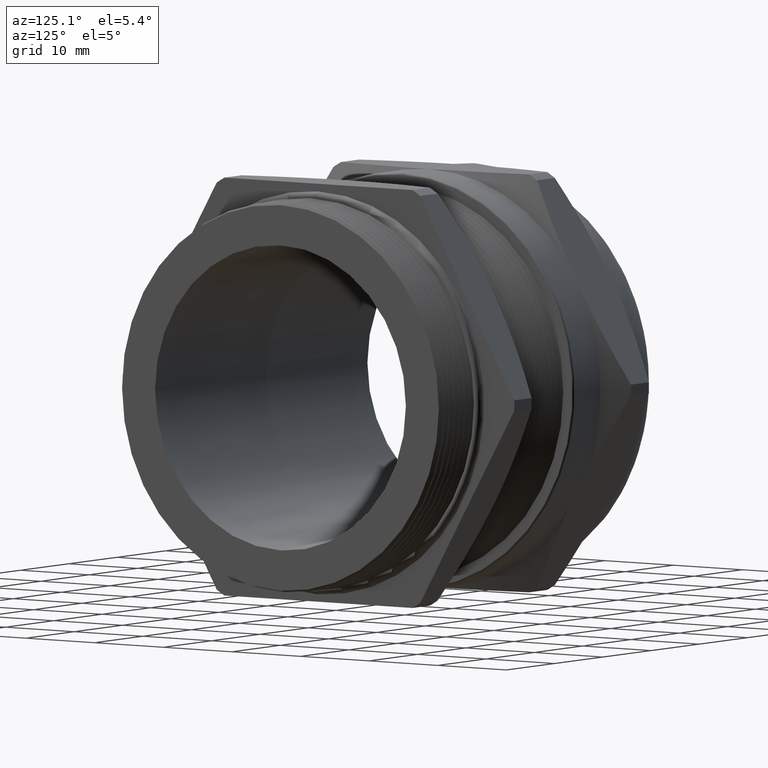
[diagram: clean part render]
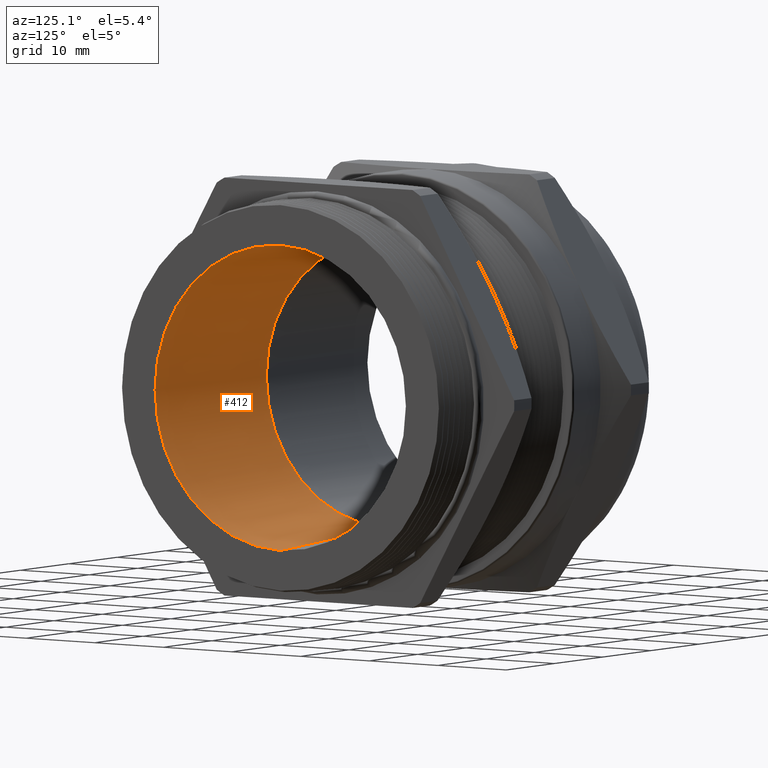
[diagram: same view with one face highlighted and labeled with its STEP entity id]
A machine part, auxiliary view. The second image highlights one B-rep face of the part: STEP entity #412.
In plain terms, the highlighted conical surface has half-angle 3 deg.
Its self-contained STEP definition (entity closure, byte-faithful):
#101 = EDGE_LOOP ( 'NONE', ( #413, #394, #102, #414 ) ) ;
#102 = ORIENTED_EDGE ( 'NONE', *, *, #103, .F. ) ;
#103 = EDGE_CURVE ( 'NONE', #104, #396, #999, .T. ) ;
#104 = VERTEX_POINT ( 'NONE', #1057 ) ;
#389 = VERTEX_POINT ( 'NONE', #1507 ) ;
#393 = EDGE_CURVE ( 'NONE', #389, #4209, #1554, .T. ) ;
#394 = ORIENTED_EDGE ( 'NONE', *, *, #395, .T. ) ;
#395 = EDGE_CURVE ( 'NONE', #4209, #396, #1549, .T. ) ;
#396 = VERTEX_POINT ( 'NONE', #1545 ) ;
#412 = ADVANCED_FACE ( 'NONE', ( #1576 ), #1575, .F. ) ;
#413 = ORIENTED_EDGE ( 'NONE', *, *, #393, .T. ) ;
#414 = ORIENTED_EDGE ( 'NONE', *, *, #415, .F. ) ;
#415 = EDGE_CURVE ( 'NONE', #389, #104, #1574, .T. ) ;
#995 = DIRECTION ( 'NONE',  ( 0.0000000000000000000, 0.0000000000000000000, 1.000000000000000000 ) ) ;
#996 = DIRECTION ( 'NONE',  ( -1.000000000000000000, 0.0000000000000000000, 0.0000000000000000000 ) ) ;
#997 = CARTESIAN_POINT ( 'NONE',  ( 0.8449999999999998600, 0.0000000000000000000, 0.0000000000000000000 ) ) ;
#998 = AXIS2_PLACEMENT_3D ( 'NONE', #997, #996, #995 ) ;
#999 = CIRCLE ( 'NONE', #998, 0.7192845734941704100 ) ;
#1057 = CARTESIAN_POINT ( 'NONE',  ( 0.8449999999999998600, 0.0000000000000000000, -0.7192845734941704100 ) ) ;
#1507 = CARTESIAN_POINT ( 'NONE',  ( 0.0000000000000000000, 0.0000000000000000000, -0.6750000000000000400 ) ) ;
#1545 = CARTESIAN_POINT ( 'NONE',  ( 0.8449999999999998600, 8.808695506057048900E-017, 0.7192845734941704100 ) ) ;
#1546 = DIRECTION ( 'NONE',  ( 0.9986295347545738300, 6.409306129323784100E-018, 0.05233595624294443800 ) ) ;
#1547 = VECTOR ( 'NONE', #1546, 39.37007874015748900 ) ;
#1548 = CARTESIAN_POINT ( 'NONE',  ( 0.0000000000000000000, 8.266365894244635600E-017, 0.6750000000000000400 ) ) ;
#1549 = LINE ( 'NONE', #1548, #1547 ) ;
#1550 = DIRECTION ( 'NONE',  ( 0.0000000000000000000, 0.0000000000000000000, 1.000000000000000000 ) ) ;
#1551 = DIRECTION ( 'NONE',  ( -1.000000000000000000, 0.0000000000000000000, 0.0000000000000000000 ) ) ;
#1552 = CARTESIAN_POINT ( 'NONE',  ( 0.0000000000000000000, 0.0000000000000000000, 0.0000000000000000000 ) ) ;
#1553 = AXIS2_PLACEMENT_3D ( 'NONE', #1552, #1551, #1550 ) ;
#1554 = CIRCLE ( 'NONE', #1553, 0.6750000000000000400 ) ;
#1567 = DIRECTION ( 'NONE',  ( 0.9986295347545738300, 0.0000000000000000000, -0.05233595624294443800 ) ) ;
#1568 = VECTOR ( 'NONE', #1567, 39.37007874015748900 ) ;
#1569 = CARTESIAN_POINT ( 'NONE',  ( 0.0000000000000000000, 0.0000000000000000000, -0.6750000000000000400 ) ) ;
#1570 = DIRECTION ( 'NONE',  ( 0.0000000000000000000, 0.0000000000000000000, -1.000000000000000000 ) ) ;
#1571 = DIRECTION ( 'NONE',  ( 1.000000000000000000, 0.0000000000000000000, 0.0000000000000000000 ) ) ;
#1572 = CARTESIAN_POINT ( 'NONE',  ( 0.0000000000000000000, 0.0000000000000000000, 0.0000000000000000000 ) ) ;
#1573 = AXIS2_PLACEMENT_3D ( 'NONE', #1572, #1571, #1570 ) ;
#1574 = LINE ( 'NONE', #1569, #1568 ) ;
#1575 = CONICAL_SURFACE ( 'NONE', #1573, 0.6750000000000000400, 0.05235987755983048700 ) ;
#1576 = FACE_OUTER_BOUND ( 'NONE', #101, .T. ) ;
#3163 = CARTESIAN_POINT ( 'NONE',  ( 0.0000000000000000000, 8.537530700150841600E-017, 0.6750000000000000400 ) ) ;
#4209 = VERTEX_POINT ( 'NONE', #3163 ) ;